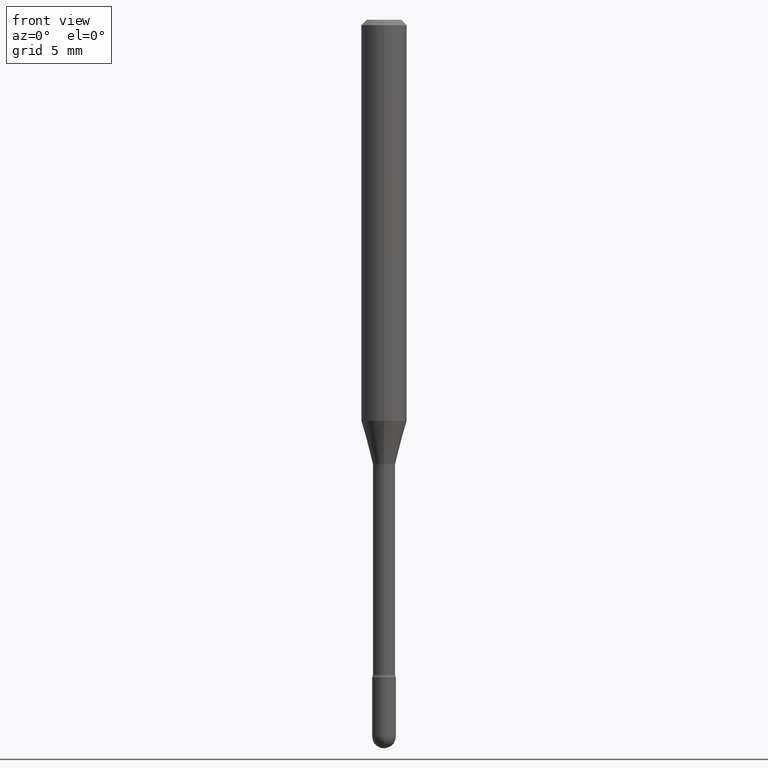
[diagram: clean part render]
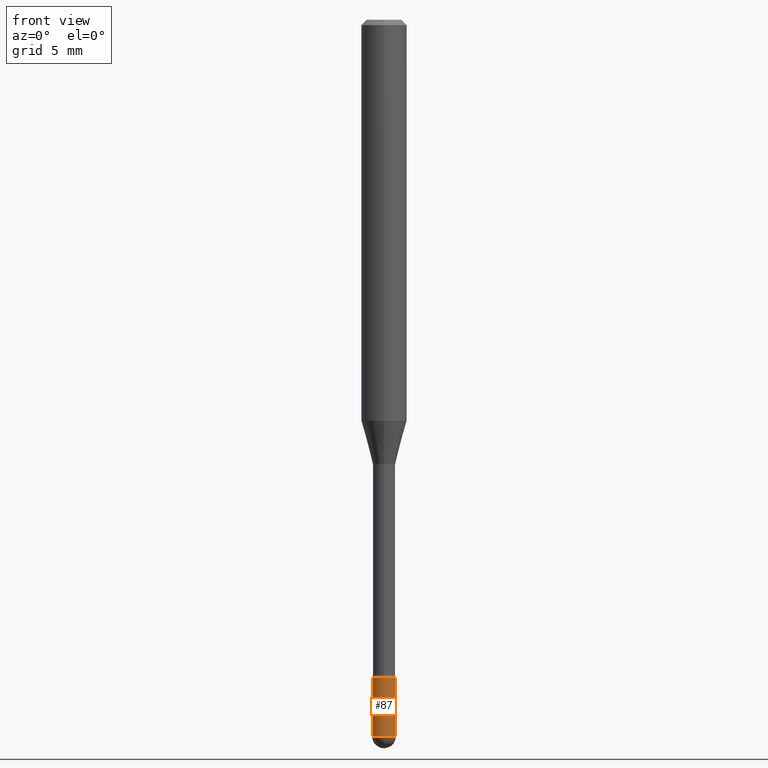
[diagram: same view with one face highlighted and labeled with its STEP entity id]
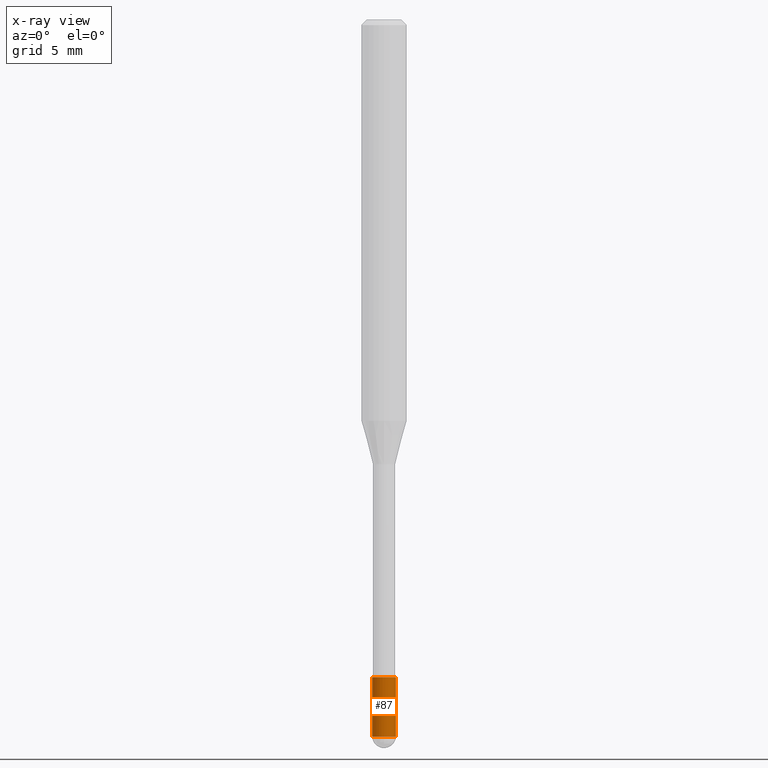
[diagram: x-ray of the same camera — body ghosted, the highlighted face saturated]
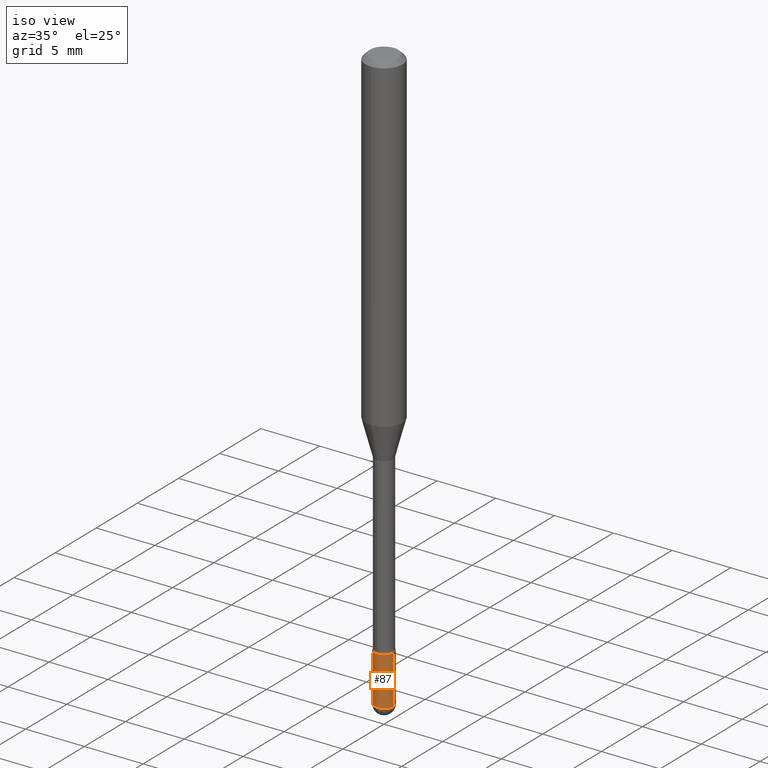
[diagram: same view with one face highlighted and labeled with its STEP entity id]
A machine part, front view. The second image highlights one B-rep face of the part: STEP entity #87.
The next image is the same camera in x-ray: the body ghosted, the highlighted face saturated — about 0% of this face is hidden behind the body in this view.
A second angle (iso view) of the same face is appended — the face is thin or edge-on in the first view.
In plain terms, the highlighted cylindrical surface (edge-blend (fillet) strip) has radius 0.8255 mm, axis along (-0, 0, 1).
Its self-contained STEP definition (entity closure, byte-faithful):
#7 = EDGE_CURVE ( 'NONE', #137, #136, #385, .T. ) ;
#14 = DIRECTION ( 'NONE',  ( 1.000000000000000000, -6.982962677686258033E-15, 0.000000000000000000 ) ) ;
#18 = CARTESIAN_POINT ( 'NONE',  ( 4.811459876169256232E-29, -6.869489534173888700E-15, -1.967500000000000027 ) ) ;
#42 = CARTESIAN_POINT ( 'NONE',  ( 0.03250000000000000111, -6.812752962417686284E-15, -1.967500000000000027 ) ) ;
#67 = CARTESIAN_POINT ( 'NONE',  ( -0.03250000000000000111, -6.354880286270850561E-15, -1.967500000000000027 ) ) ;
#80 = LINE ( 'NONE', #117, #522 ) ;
#87 = ADVANCED_FACE ( 'NONE', ( #370 ), #408, .T. ) ;
#108 = VERTEX_POINT ( 'NONE', #67 ) ;
#110 = VERTEX_POINT ( 'NONE', #192 ) ;
#117 = CARTESIAN_POINT ( 'NONE',  ( 0.03250000000000000111, -2.269462870248036977E-16, 1.584757452133679343E-30 ) ) ;
#134 = AXIS2_PLACEMENT_3D ( 'NONE', #325, #154, #363 ) ;
#136 = VERTEX_POINT ( 'NONE', #42 ) ;
#137 = VERTEX_POINT ( 'NONE', #383 ) ;
#141 = AXIS2_PLACEMENT_3D ( 'NONE', #18, #230, #14 ) ;
#154 = DIRECTION ( 'NONE',  ( -2.445468806185136597E-29, 3.491481338843145583E-15, 1.000000000000000000 ) ) ;
#156 = AXIS2_PLACEMENT_3D ( 'NONE', #423, #499, #548 ) ;
#169 = EDGE_LOOP ( 'NONE', ( #417, #351, #269, #316, #382 ) ) ;
#192 = CARTESIAN_POINT ( 'NONE',  ( 0.03250000000000000111, -6.529070103636681305E-15, -1.804999999999999938 ) ) ;
#210 = CIRCLE ( 'NONE', #387, 0.03250000000000000111 ) ;
#228 = VERTEX_POINT ( 'NONE', #229 ) ;
#229 = CARTESIAN_POINT ( 'NONE',  ( -0.03250000000000000111, -6.354880286270850561E-15, -1.804999999999999938 ) ) ;
#230 = DIRECTION ( 'NONE',  ( -2.445468806185136597E-29, 3.491481338843145583E-15, 1.000000000000000000 ) ) ;
#246 = CARTESIAN_POINT ( 'NONE',  ( 4.414071195164171423E-29, -6.302123816611877952E-15, -1.804999999999999938 ) ) ;
#269 = ORIENTED_EDGE ( 'NONE', *, *, #7, .T. ) ;
#285 = DIRECTION ( 'NONE',  ( -2.445468806185136877E-29, 3.491481338843145188E-15, 1.000000000000000000 ) ) ;
#287 = DIRECTION ( 'NONE',  ( 1.000000000000000000, -6.982962677686258033E-15, 0.000000000000000000 ) ) ;
#312 = EDGE_CURVE ( 'NONE', #108, #228, #328, .T. ) ;
#316 = ORIENTED_EDGE ( 'NONE', *, *, #380, .T. ) ;
#322 = VECTOR ( 'NONE', #558, 39.37007874015748143 ) ;
#325 = CARTESIAN_POINT ( 'NONE',  ( 0.000000000000000000, 0.000000000000000000, 0.000000000000000000 ) ) ;
#328 = LINE ( 'NONE', #452, #322 ) ;
#330 = EDGE_CURVE ( 'NONE', #108, #137, #549, .T. ) ;
#351 = ORIENTED_EDGE ( 'NONE', *, *, #330, .T. ) ;
#363 = DIRECTION ( 'NONE',  ( 1.000000000000000000, -6.982962677686267499E-15, 4.876176775795936353E-29 ) ) ;
#370 = FACE_OUTER_BOUND ( 'NONE', #169, .T. ) ;
#380 = EDGE_CURVE ( 'NONE', #136, #110, #80, .T. ) ;
#382 = ORIENTED_EDGE ( 'NONE', *, *, #536, .F. ) ;
#383 = CARTESIAN_POINT ( 'NONE',  ( -2.309263891219843985E-16, -0.03250000000000686368, -1.967500000000000027 ) ) ;
#385 = CIRCLE ( 'NONE', #141, 0.03250000000000000111 ) ;
#387 = AXIS2_PLACEMENT_3D ( 'NONE', #246, #506, #287 ) ;
#408 = CYLINDRICAL_SURFACE ( 'NONE', #134, 0.03250000000000000111 ) ;
#417 = ORIENTED_EDGE ( 'NONE', *, *, #312, .F. ) ;
#423 = CARTESIAN_POINT ( 'NONE',  ( 4.811459876169256232E-29, -6.869489534173888700E-15, -1.967500000000000027 ) ) ;
#452 = CARTESIAN_POINT ( 'NONE',  ( -0.03250000000000000111, 2.309263891220325683E-16, -1.598653904332844407E-30 ) ) ;
#499 = DIRECTION ( 'NONE',  ( -2.445468806185136597E-29, 3.491481338843145583E-15, 1.000000000000000000 ) ) ;
#506 = DIRECTION ( 'NONE',  ( -2.445468806185136597E-29, 3.491481338843145583E-15, 1.000000000000000000 ) ) ;
#522 = VECTOR ( 'NONE', #285, 39.37007874015748143 ) ;
#536 = EDGE_CURVE ( 'NONE', #228, #110, #210, .T. ) ;
#548 = DIRECTION ( 'NONE',  ( 1.000000000000000000, -6.982962677686258033E-15, 0.000000000000000000 ) ) ;
#549 = CIRCLE ( 'NONE', #156, 0.03250000000000000111 ) ;
#558 = DIRECTION ( 'NONE',  ( -2.445468806185136877E-29, 3.491481338843145188E-15, 1.000000000000000000 ) ) ;